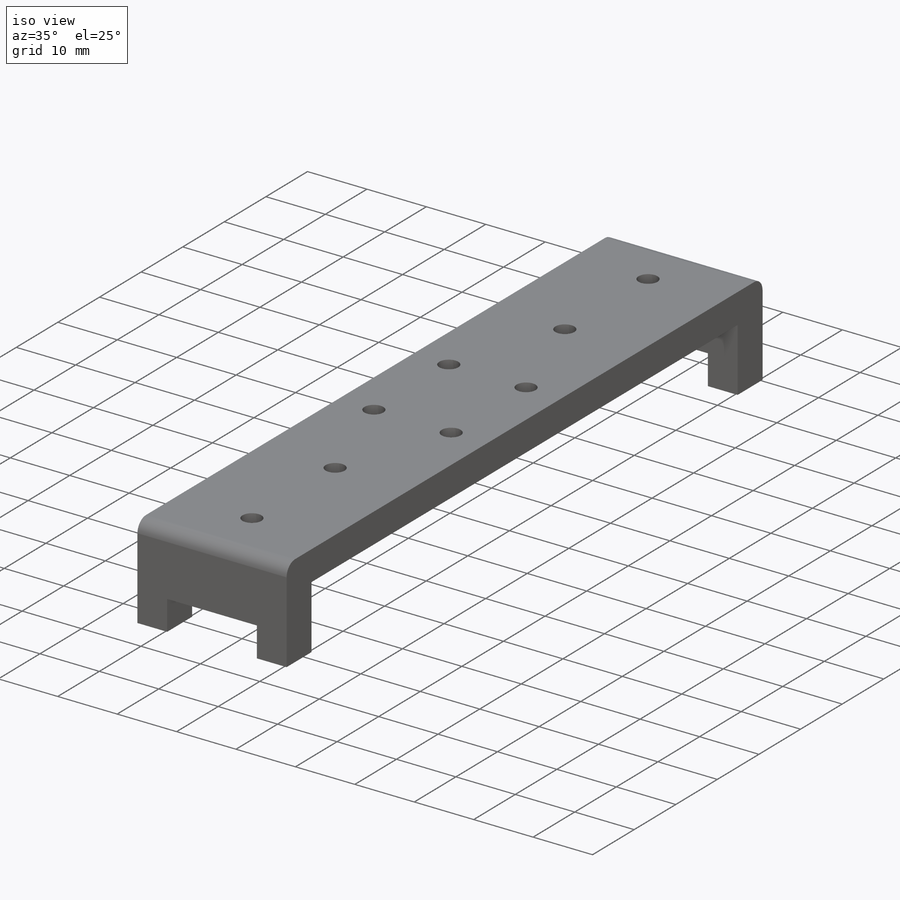
[diagram: iso view]
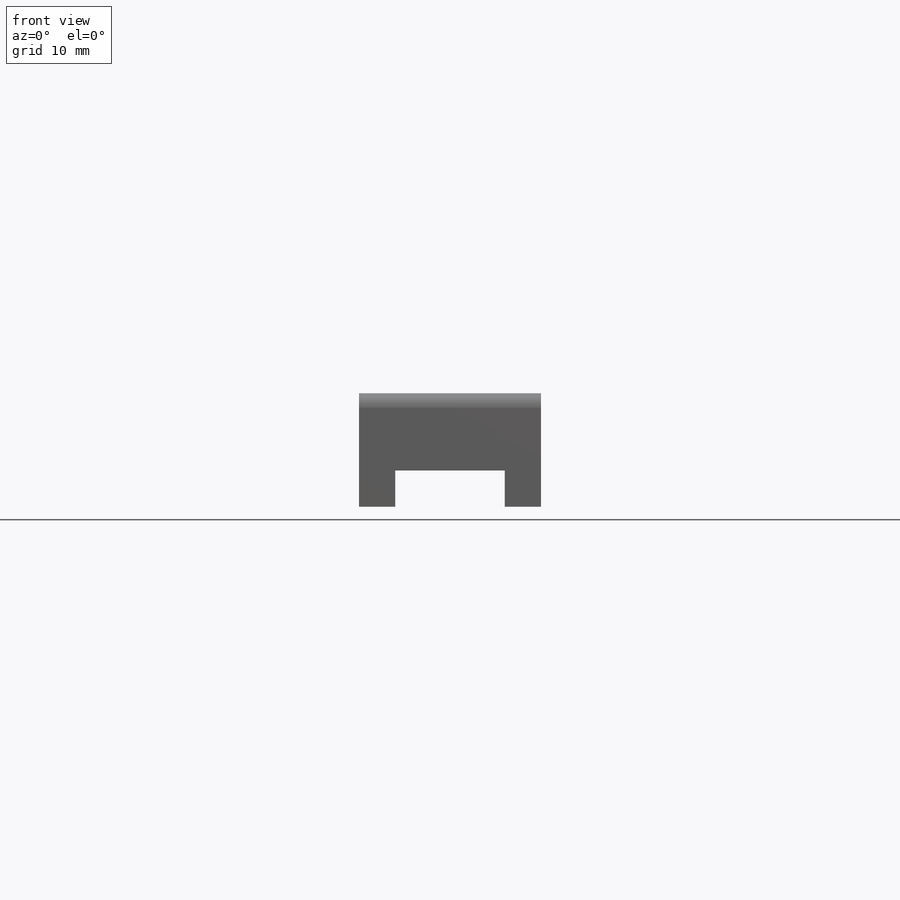
[diagram: front view]
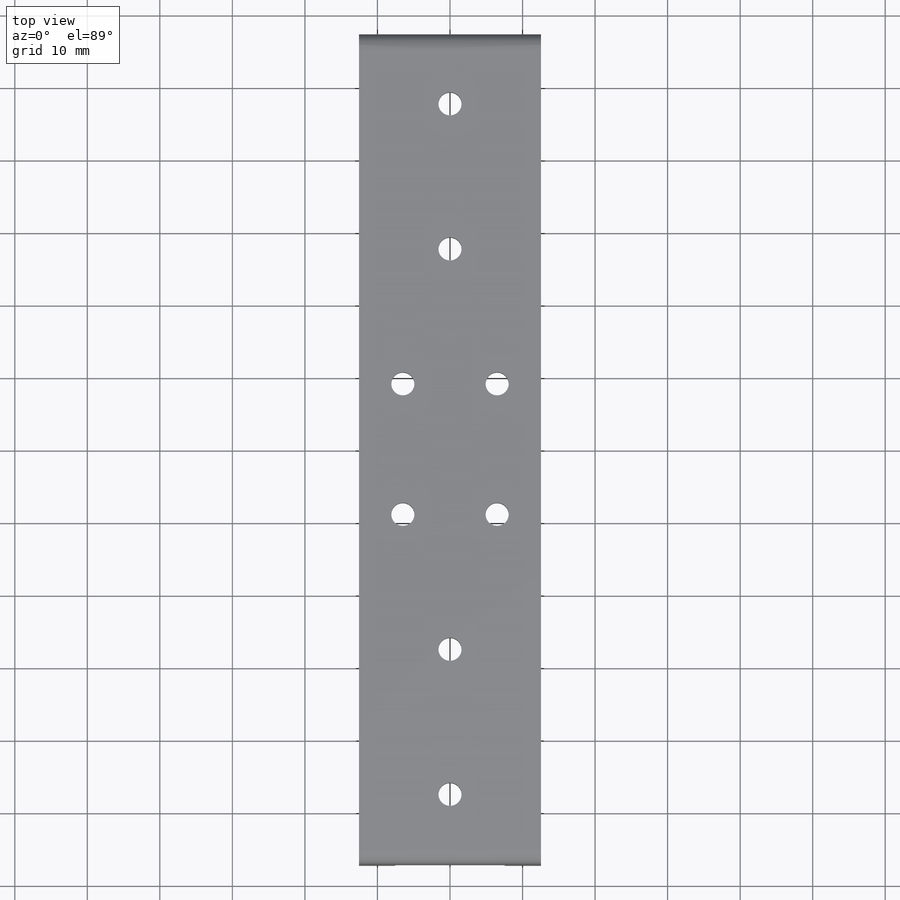
[diagram: top view]
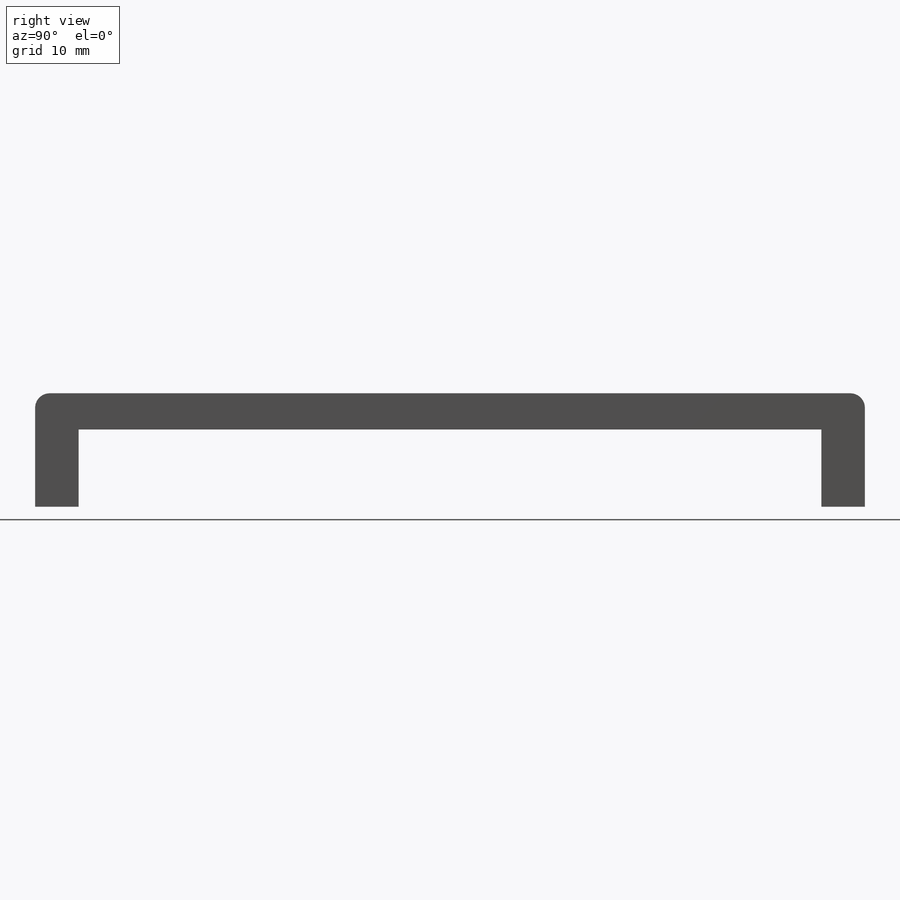
[diagram: right view]
SOLIDWORKS PART (.sldprt)
format: sldprt  version: not decoded by parser v0  size: 215,552 bytes
history: native  units: mm
features: sketch x3, extrude x2, material x1, mirror x1, fillet x1 (+11 scaffold rows collapsed)
feature tree (19):
  scaffold x11  (default folders/planes/origin — collapsed)
  material  "Material <not specified>"
  sketch  "Sketch1"  dims[D4=3.2mm D6=3.2mm D9=3.2mm D1=57.2mm D2=15.1mm D3=6.0mm D5=27.6mm D7=9.0mm D8=6.5mm D10=20.0mm]
  sketch  "Sketch2"  dims[D1=5.0mm]
  extrude  "Boss-Extrude1"  Depth=5mm
  sketch  "Sketch4"  dims[c1.D1=11.5mm c1.D2=5.0mm c1.D3=5.0mm c1.D4=17.15mm c2.D1=17.15mm c2.D4=11.5mm]
  extrude  "Boss-Extrude2"  Depth=6mm
  mirror  "Mirror1"
  fillet  "Fillet1"  Radius=2mm
decode coverage: 6 of 7 modeling features carry decoded parameters
note: suppression state not decoded; provenance and decode notes live in map.json
